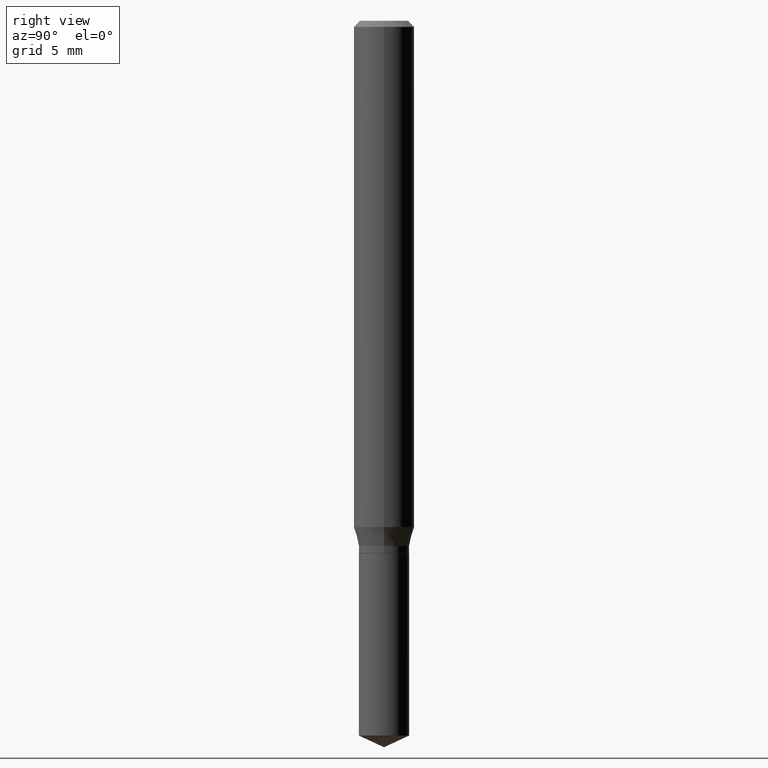
[diagram: clean part render]
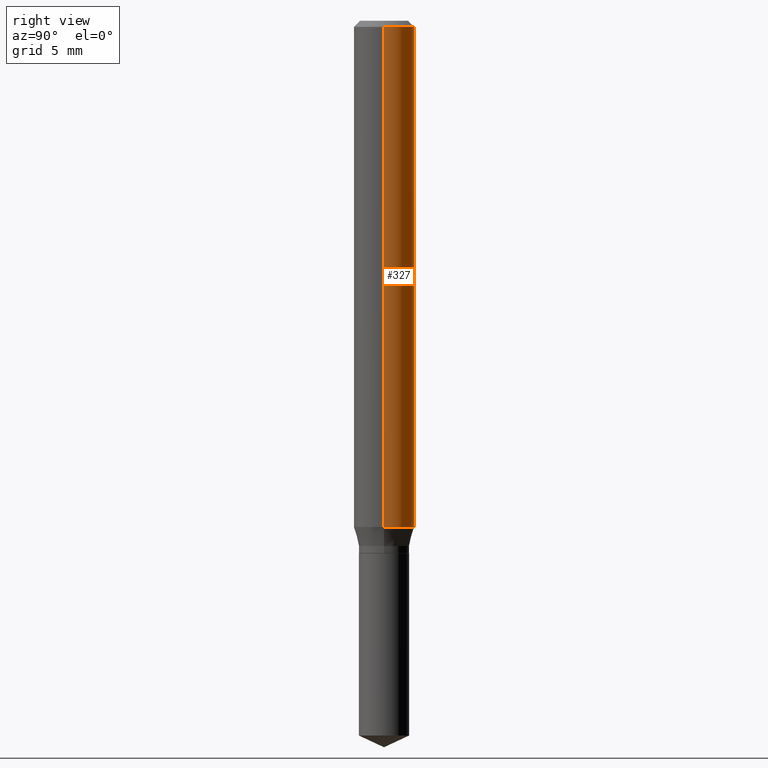
[diagram: same view with one face highlighted and labeled with its STEP entity id]
A machine part, right view. The second image highlights one B-rep face of the part: STEP entity #327.
In plain terms, the highlighted cylindrical surface (edge-blend (fillet) strip) has radius 1.5875 mm, axis along (-0, 0, 1).
Its self-contained STEP definition (entity closure, byte-faithful):
#11 = VERTEX_POINT ( 'NONE', #259 ) ;
#26 = LINE ( 'NONE', #245, #370 ) ;
#31 = DIRECTION ( 'NONE',  ( 1.000000000000000000, -6.982962677686266711E-15, 0.000000000000000000 ) ) ;
#41 = EDGE_CURVE ( 'NONE', #11, #423, #230, .T. ) ;
#69 = EDGE_CURVE ( 'NONE', #289, #423, #129, .T. ) ;
#109 = CYLINDRICAL_SURFACE ( 'NONE', #277, 0.06250000000000006939 ) ;
#125 = CARTESIAN_POINT ( 'NONE',  ( -0.06250000000000012490, -3.205254103613909286E-15, -1.045213466520526380 ) ) ;
#129 = LINE ( 'NONE', #170, #275 ) ;
#138 = DIRECTION ( 'NONE',  ( -2.445468806185136597E-29, 3.491481338843145583E-15, 1.000000000000000000 ) ) ;
#148 = DIRECTION ( 'NONE',  ( 1.000000000000000000, -6.982962677686264344E-15, 0.000000000000000000 ) ) ;
#155 = ORIENTED_EDGE ( 'NONE', *, *, #69, .T. ) ;
#159 = ORIENTED_EDGE ( 'NONE', *, *, #395, .T. ) ;
#170 = CARTESIAN_POINT ( 'NONE',  ( -0.06250000000000006939, 4.440892098500631092E-16, -3.074334431409319267E-30 ) ) ;
#179 = CIRCLE ( 'NONE', #458, 0.06250000000000012490 ) ;
#189 = CARTESIAN_POINT ( 'NONE',  ( 0.06250000000000012490, -4.085778480819365543E-15, -1.045213466520526380 ) ) ;
#191 = CARTESIAN_POINT ( 'NONE',  ( 2.556036928180580217E-29, -3.649343313463973085E-15, -1.045213466520526380 ) ) ;
#204 = ORIENTED_EDGE ( 'NONE', *, *, #41, .F. ) ;
#207 = DIRECTION ( 'NONE',  ( -2.445468806185136877E-29, 3.491481338843145188E-15, 1.000000000000000000 ) ) ;
#230 = CIRCLE ( 'NONE', #269, 0.06250000000000000000 ) ;
#245 = CARTESIAN_POINT ( 'NONE',  ( 0.06250000000000006939, -4.364351673553921624E-16, 3.047610484872463374E-30 ) ) ;
#258 = CARTESIAN_POINT ( 'NONE',  ( -0.06250000000000000000, -1.402404205249692524E-15, -0.01250000000000008916 ) ) ;
#259 = CARTESIAN_POINT ( 'NONE',  ( 0.06250000000000000000, -4.800786840909313294E-16, -0.01250000000000008916 ) ) ;
#263 = CARTESIAN_POINT ( 'NONE',  ( 0.000000000000000000, 0.000000000000000000, 0.000000000000000000 ) ) ;
#269 = AXIS2_PLACEMENT_3D ( 'NONE', #403, #138, #31 ) ;
#275 = VECTOR ( 'NONE', #207, 39.37007874015748143 ) ;
#277 = AXIS2_PLACEMENT_3D ( 'NONE', #263, #487, #489 ) ;
#282 = EDGE_CURVE ( 'NONE', #437, #11, #26, .T. ) ;
#289 = VERTEX_POINT ( 'NONE', #125 ) ;
#327 = ADVANCED_FACE ( 'NONE', ( #457 ), #109, .T. ) ;
#334 = DIRECTION ( 'NONE',  ( -2.445468806185136877E-29, 3.491481338843145188E-15, 1.000000000000000000 ) ) ;
#341 = DIRECTION ( 'NONE',  ( -2.445468806185136597E-29, 3.491481338843145583E-15, 1.000000000000000000 ) ) ;
#363 = ORIENTED_EDGE ( 'NONE', *, *, #282, .F. ) ;
#370 = VECTOR ( 'NONE', #334, 39.37007874015748143 ) ;
#380 = EDGE_LOOP ( 'NONE', ( #159, #155, #204, #363 ) ) ;
#395 = EDGE_CURVE ( 'NONE', #437, #289, #179, .T. ) ;
#403 = CARTESIAN_POINT ( 'NONE',  ( 3.056836007731442729E-31, -4.364351673553962300E-17, -0.01250000000000008916 ) ) ;
#423 = VERTEX_POINT ( 'NONE', #258 ) ;
#437 = VERTEX_POINT ( 'NONE', #189 ) ;
#457 = FACE_OUTER_BOUND ( 'NONE', #380, .T. ) ;
#458 = AXIS2_PLACEMENT_3D ( 'NONE', #191, #341, #148 ) ;
#487 = DIRECTION ( 'NONE',  ( -2.445468806185136597E-29, 3.491481338843145583E-15, 1.000000000000000000 ) ) ;
#489 = DIRECTION ( 'NONE',  ( 1.000000000000000000, -6.982962677686266711E-15, 4.876176775795935793E-29 ) ) ;